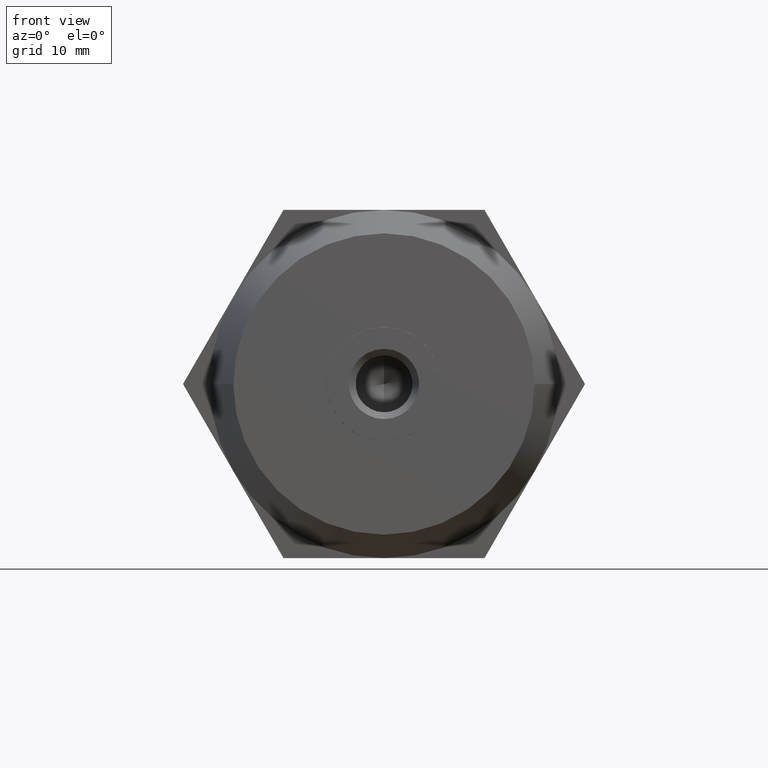
[diagram: clean part render]
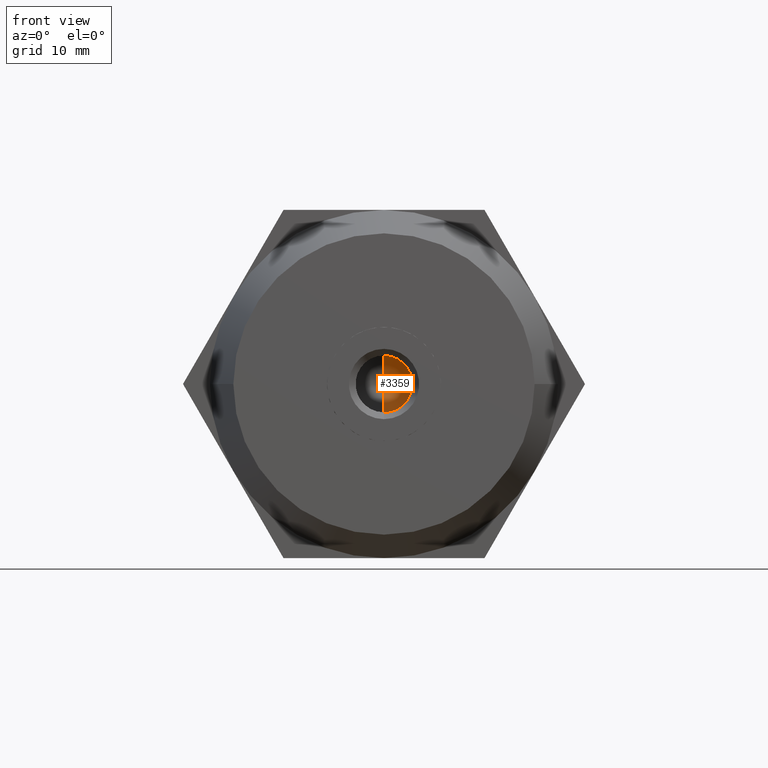
[diagram: same view with one face highlighted and labeled with its STEP entity id]
A machine part, front view. The second image highlights one B-rep face of the part: STEP entity #3359.
In plain terms, the highlighted conical surface has half-angle 59 deg.
Its self-contained STEP definition (entity closure, byte-faithful):
#134 = EDGE_CURVE ( 'NONE', #3607, #2327, #655, .T. ) ;
#206 = EDGE_CURVE ( 'NONE', #2180, #2327, #989, .T. ) ;
#491 = CARTESIAN_POINT ( 'NONE',  ( 0.0000000000000000000, 3.050000000000000300, 0.0000000000000000000 ) ) ;
#525 = DIRECTION ( 'NONE',  ( 0.0000000000000000000, 0.0000000000000000000, 1.000000000000000000 ) ) ;
#542 = CONICAL_SURFACE ( 'NONE', #1306, 4.250000000000000000, 1.029744258676653600 ) ;
#655 = CIRCLE ( 'NONE', #1276, 4.250000000000000000 ) ;
#728 = ORIENTED_EDGE ( 'NONE', *, *, #134, .T. ) ;
#850 = CARTESIAN_POINT ( 'NONE',  ( 5.204748896376250700E-016, 3.050000000000000300, -4.250000000000000000 ) ) ;
#989 = LINE ( 'NONE', #3567, #1715 ) ;
#1131 = CARTESIAN_POINT ( 'NONE',  ( 0.0000000000000000000, 3.050000000000000300, 0.0000000000000000000 ) ) ;
#1276 = AXIS2_PLACEMENT_3D ( 'NONE', #491, #3001, #3859 ) ;
#1306 = AXIS2_PLACEMENT_3D ( 'NONE', #1131, #2381, #525 ) ;
#1483 = VECTOR ( 'NONE', #3597, 999.9999999999998900 ) ;
#1510 = EDGE_CURVE ( 'NONE', #2180, #3607, #3203, .T. ) ;
#1715 = VECTOR ( 'NONE', #1753, 999.9999999999998900 ) ;
#1753 = DIRECTION ( 'NONE',  ( 0.0000000000000000000, 0.5150380749100549300, 0.8571673007021118900 ) ) ;
#2006 = CARTESIAN_POINT ( 'NONE',  ( -4.042230298373044700E-015, 0.4963423691328700000, 0.0000000000000000000 ) ) ;
#2180 = VERTEX_POINT ( 'NONE', #2006 ) ;
#2327 = VERTEX_POINT ( 'NONE', #2555 ) ;
#2381 = DIRECTION ( 'NONE',  ( 0.0000000000000000000, 1.000000000000000000, 0.0000000000000000000 ) ) ;
#2485 = FACE_OUTER_BOUND ( 'NONE', #3175, .T. ) ;
#2555 = CARTESIAN_POINT ( 'NONE',  ( 0.0000000000000000000, 3.050000000000000300, 4.250000000000000000 ) ) ;
#3001 = DIRECTION ( 'NONE',  ( 0.0000000000000000000, 1.000000000000000000, 0.0000000000000000000 ) ) ;
#3030 = ORIENTED_EDGE ( 'NONE', *, *, #206, .F. ) ;
#3175 = EDGE_LOOP ( 'NONE', ( #3030, #3673, #728 ) ) ;
#3203 = LINE ( 'NONE', #850, #1483 ) ;
#3359 = ADVANCED_FACE ( 'NONE', ( #2485 ), #542, .F. ) ;
#3567 = CARTESIAN_POINT ( 'NONE',  ( 0.0000000000000000000, 3.050000000000000300, 4.250000000000000000 ) ) ;
#3597 = DIRECTION ( 'NONE',  ( 1.049727191138618200E-016, 0.5150380749100549300, -0.8571673007021118900 ) ) ;
#3607 = VERTEX_POINT ( 'NONE', #3742 ) ;
#3673 = ORIENTED_EDGE ( 'NONE', *, *, #1510, .T. ) ;
#3742 = CARTESIAN_POINT ( 'NONE',  ( 5.204748896376250700E-016, 3.050000000000000300, -4.250000000000000000 ) ) ;
#3859 = DIRECTION ( 'NONE',  ( 0.0000000000000000000, 0.0000000000000000000, 1.000000000000000000 ) ) ;